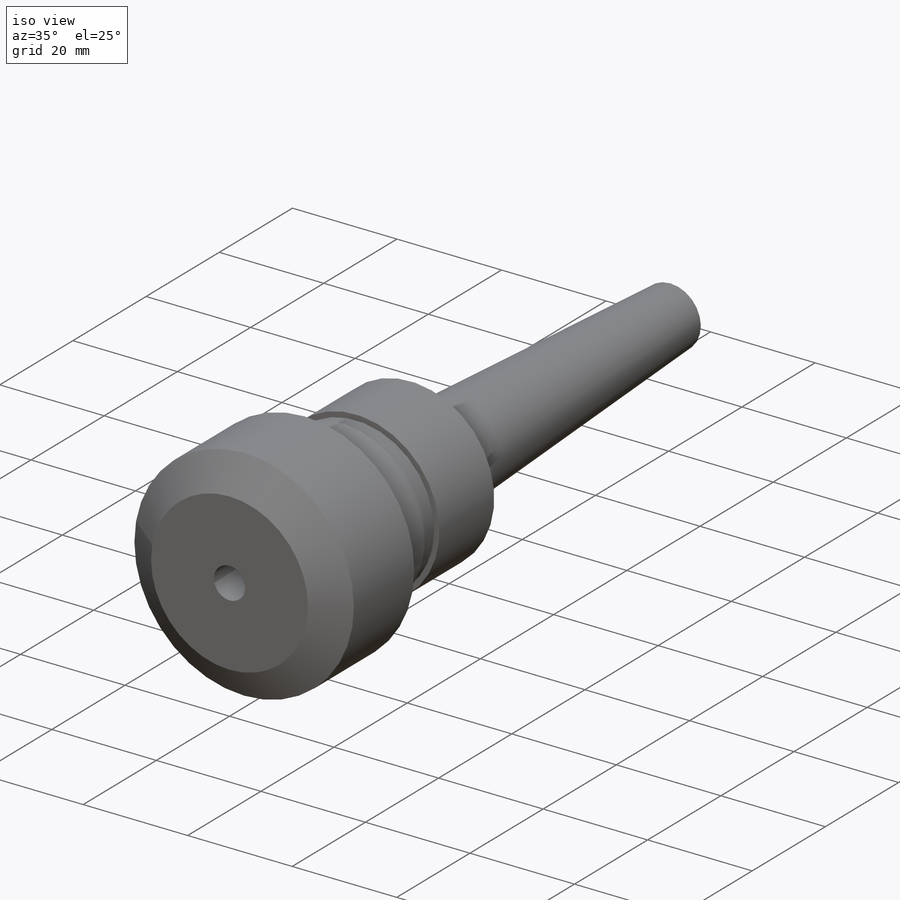
[diagram: iso view]
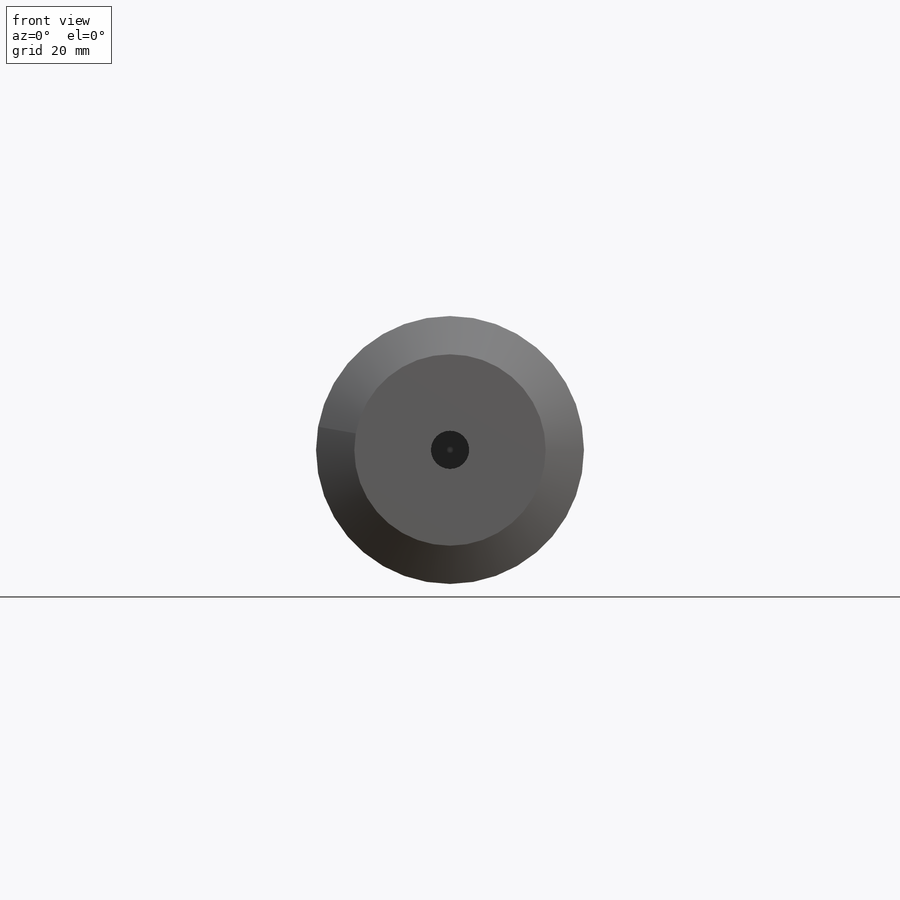
[diagram: front view]
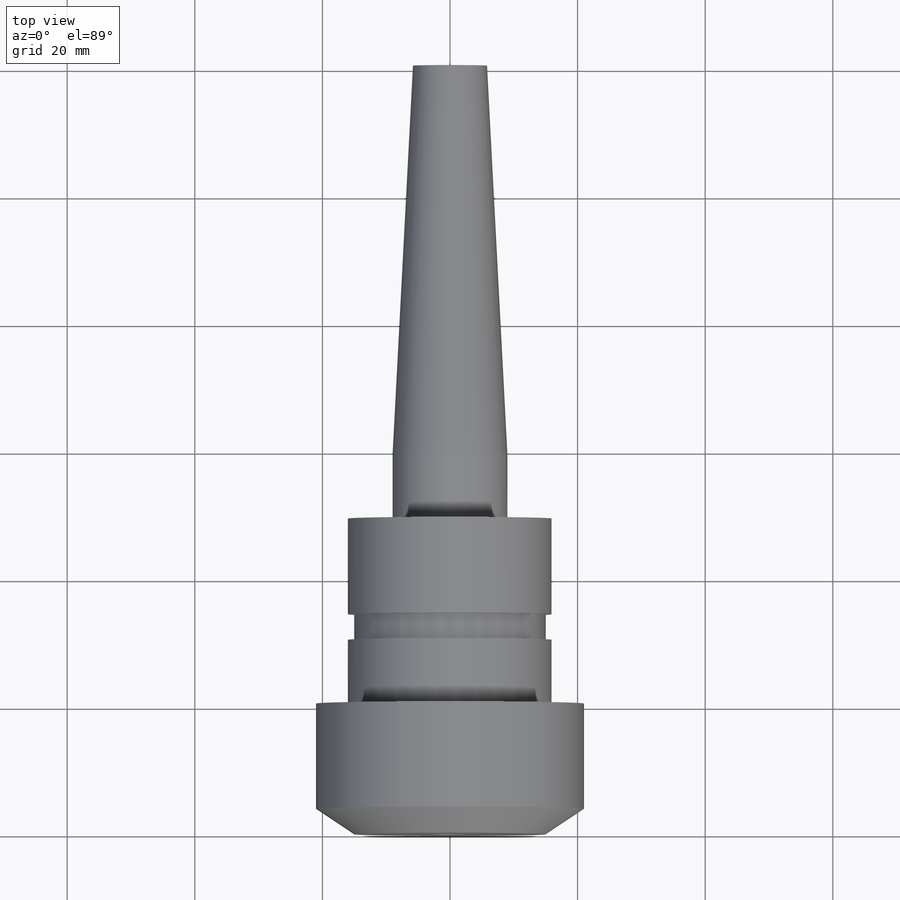
[diagram: top view]
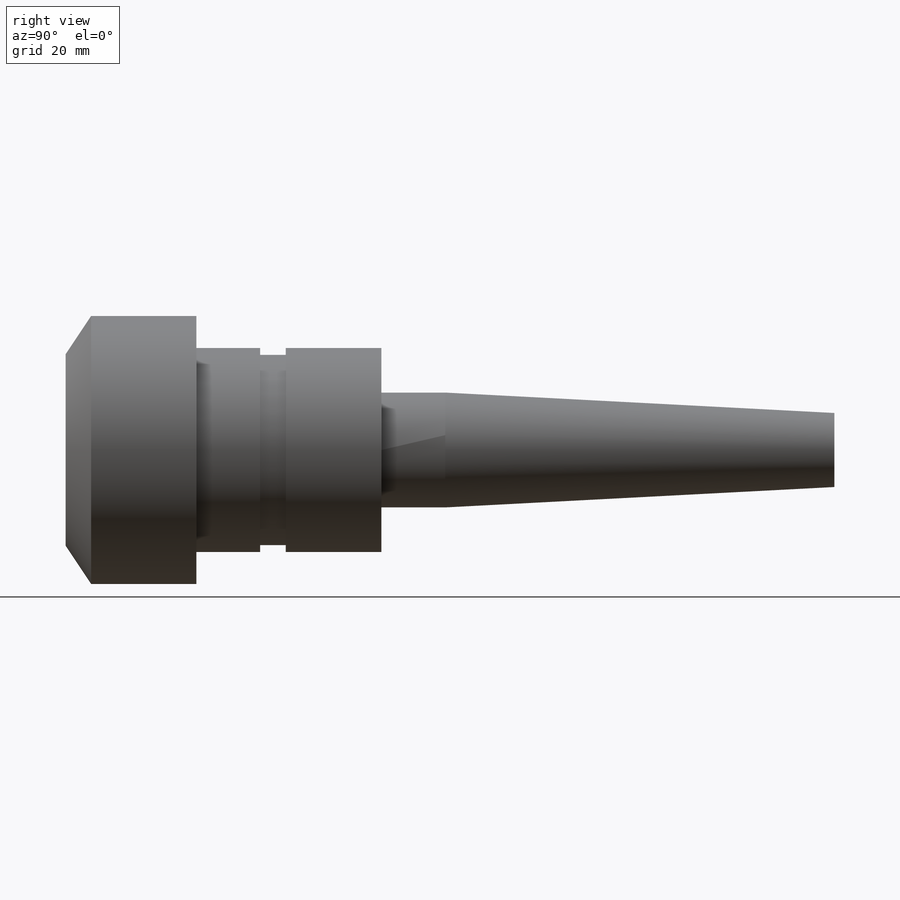
[diagram: right view]
SOLIDWORKS PART (.sldprt)
format: sldprt  version: not decoded by parser v0  size: 217,600 bytes
history: native  units: mm
features: sketch x4, extrude x2, material x1, revolve x1, cut_extrude x1 (+11 scaffold rows collapsed)
feature tree (20):
  scaffold x11  (default folders/planes/origin — collapsed)
  material  "Material <not specified>"
  sketch  "Sketch1"  dims[D1=15.0mm D2=21.0mm D3=16.0mm D4=15.0mm D5=16.0mm D6=15.0mm D7=4.0mm D8=10.0mm D9=4.0mm D10=16.5mm D11=15.0mm D12=6.0mm D13=30.0mm]
  revolve  "Revolve1"  Angle=360deg
  sketch  "Sketch2"  dims[D1=18.0mm]
  extrude  "Boss-Extrude1"  Depth=10mm
  sketch  "Sketch3"
  extrude  "Boss-Extrude2"  Depth=61mm
  sketch  "Sketch4"  dims[D1=8.0mm]
  cut_extrude  "Cut-Extrude1"  Depth=61mm
decode coverage: 7 of 8 modeling features carry decoded parameters
note: suppression state not decoded; provenance and decode notes live in map.json
